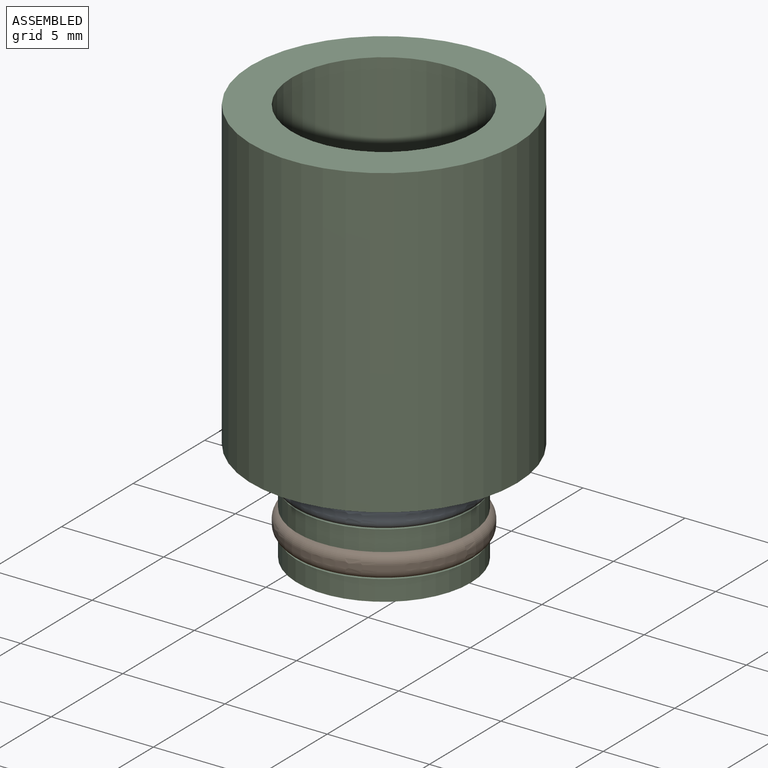
[diagram: assembled view]
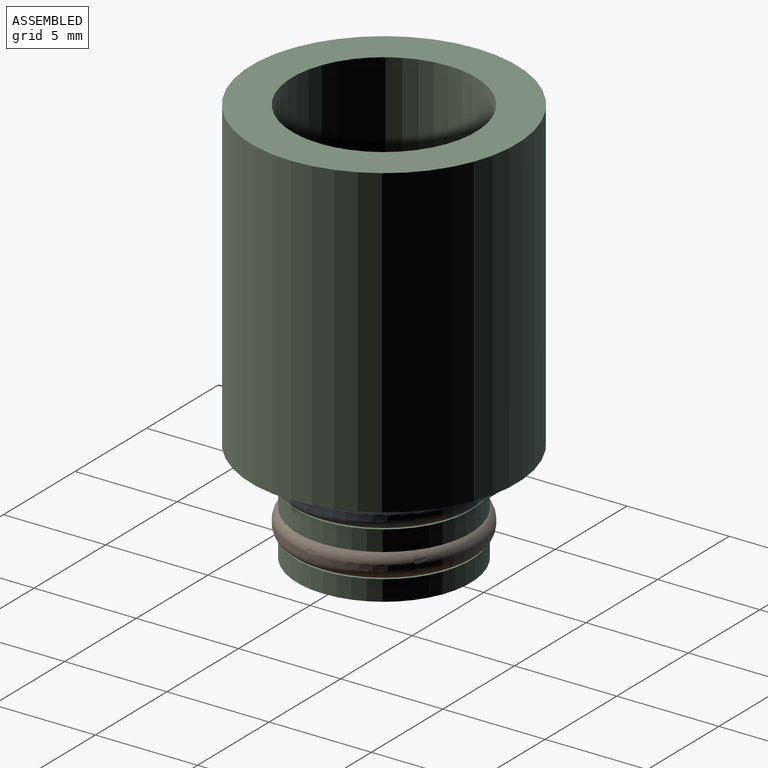
[diagram: assembled view, second angle]
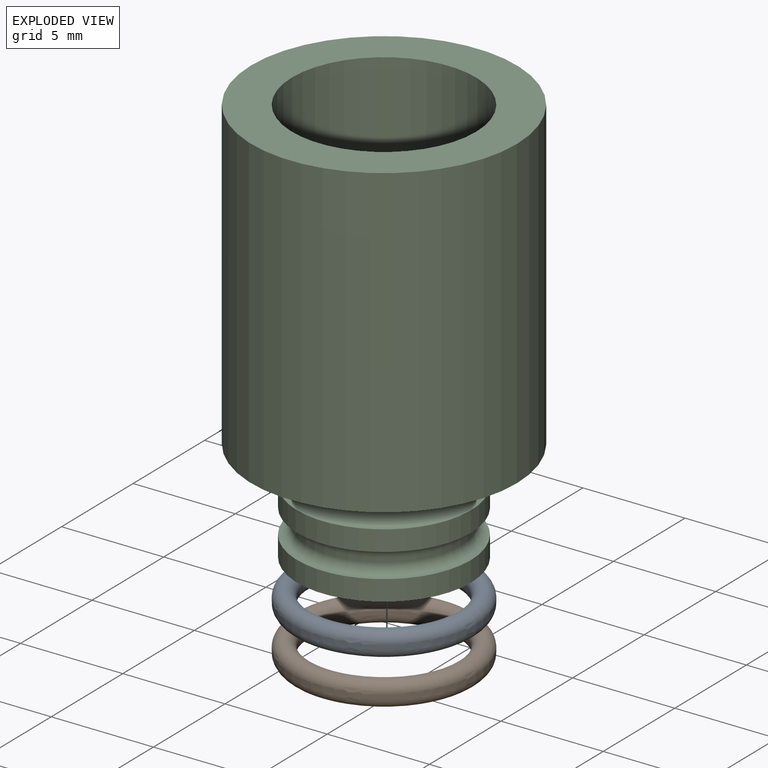
[diagram: exploded view]
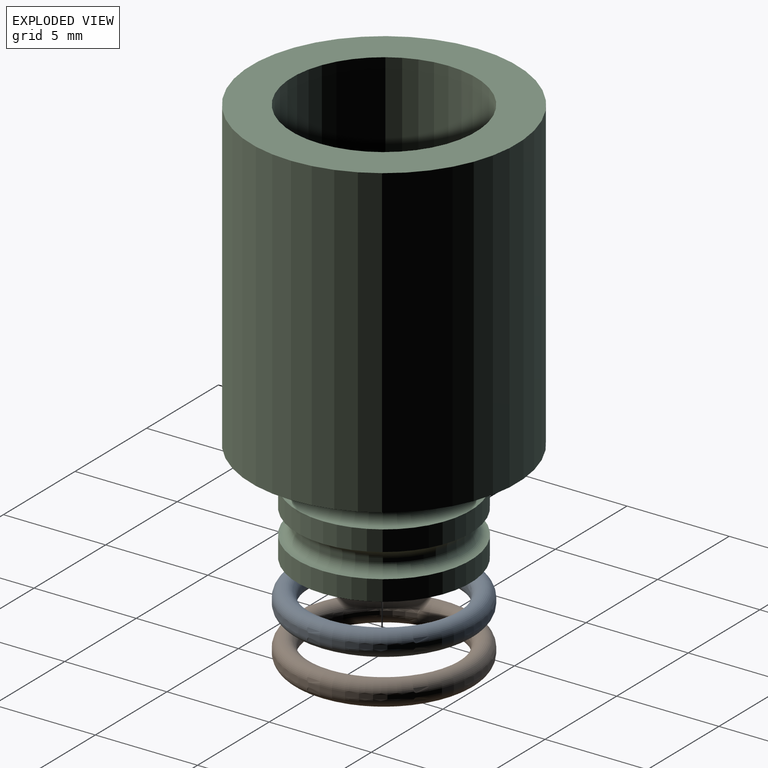
[diagram: exploded view, second angle]
ASSEMBLY  parts=3 mates=2
PART A: 4 faces, bbox 9.7x9.7x1.2 mm
  f0: cylinder r=3.5mm len=7mm, axis (0,0,-1), area 4.4mm2, adj f2,f3
  f1: cylinder r=4.5mm len=9mm, axis (0,0,-1), area 5.7mm2, adj f2,f3
  f2: torus R=4mm, axis (0,0,1), area 39.5mm2, adj f0,f1
  f3: torus R=4mm, axis (0,0,1), area 39.5mm2, adj f0,f1
PART B: same geometry as A
PART C: 17 faces, bbox 13x13x20 mm
  f0: cylinder r=4.25mm len=8.5mm, axis (0,0,1), area 2.7mm2, adj f13,f15
  f1: cylinder r=4.5mm len=12.5mm, axis (0,0,-1), area 353.5mm2, adj f3,f16
  f2: cylinder r=6.5mm len=15mm, axis (0,0,-1), area 612.6mm2, adj f3,f5
  f3: plane 13x13mm, normal (0,0,1), area 69.1mm2, adj f1,f2
  f4: cylinder r=3.05mm len=6.1mm, axis (0,0,1), area 115mm2, adj f7,f16
  f5: plane 13x13mm, normal (0,0,-1), area 61.9mm2, adj f2,f15
  f6: cylinder r=4.25mm len=8.5mm, axis (0,0,1), area 26.7mm2, adj f7,f12
  f7: plane 8.5x8.5mm, normal (0,0,-1), area 27.5mm2, adj f4,f6
  f8: cylinder r=3.75mm len=7.5mm, axis (0,0,1), area 4.7mm2, adj f11,f12
  f9: cylinder r=4.25mm len=8.5mm, axis (0,0,1), area 26.7mm2, adj f11,f14
  f10: cylinder r=3.75mm len=7.5mm, axis (0,0,1), area 4.7mm2, adj f13,f14
  f11: torus R=4.25mm, axis (0,0,1), area 19.4mm2, adj f8,f9
  f12: torus R=4.25mm, axis (0,0,-1), area 19.4mm2, adj f6,f8
  f13: torus R=4.25mm, axis (0,0,1), area 19.4mm2, adj f0,f10
  f14: torus R=4.25mm, axis (0,0,-1), area 19.4mm2, adj f9,f10
  f15: torus R=4.75mm, axis (0,0,1), area 21.9mm2, adj f0,f5
  f16: torus R=3mm, axis (0,0,-1), area 57.6mm2, adj f1,f4
PLACE A t=(-11.48,1.08,-3.7)mm
PLACE B t=(-11.48,1.08,-5.9)mm
PLACE C t=(-11.48,1.08,-0.9)mm
MATE fastened C.f0 <-> B.f0  axis (0,0,1) through (-11.48,1.08,-5.3)mm
MATE fastened C.f0 <-> A.f0  axis (0,0,1) through (-11.48,1.08,-3.1)mm
